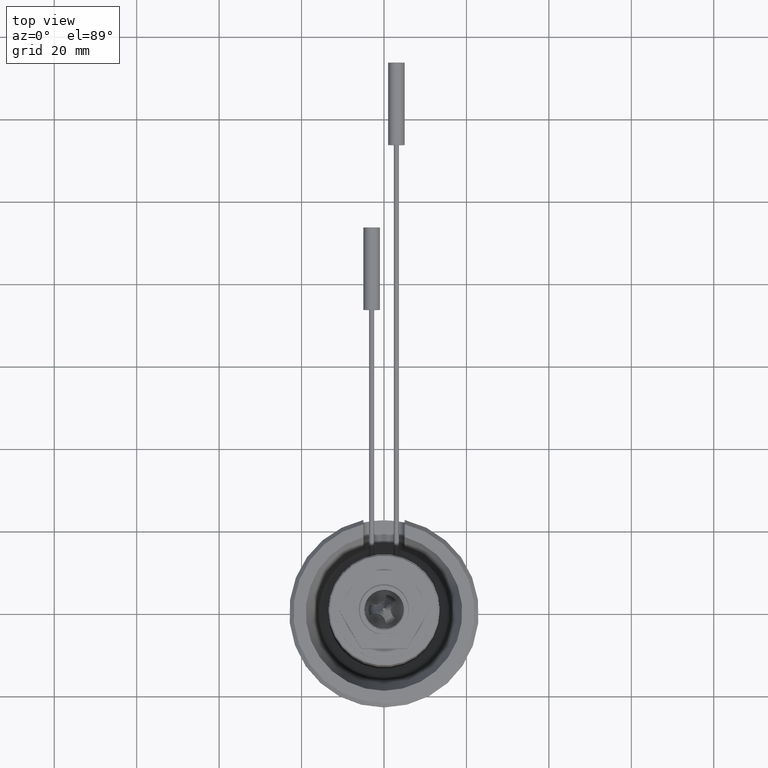
[diagram: clean part render]
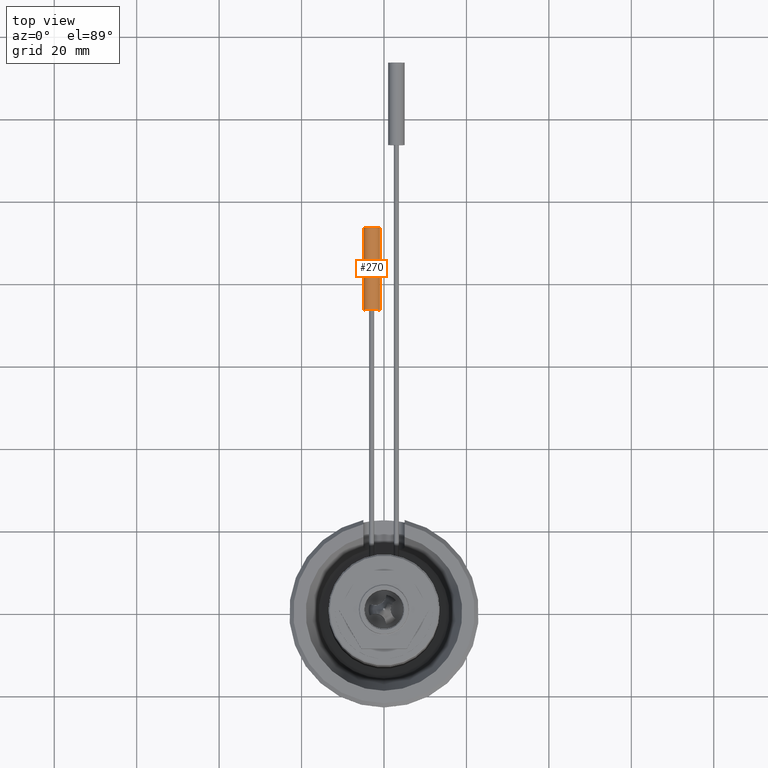
[diagram: same view with one face highlighted and labeled with its STEP entity id]
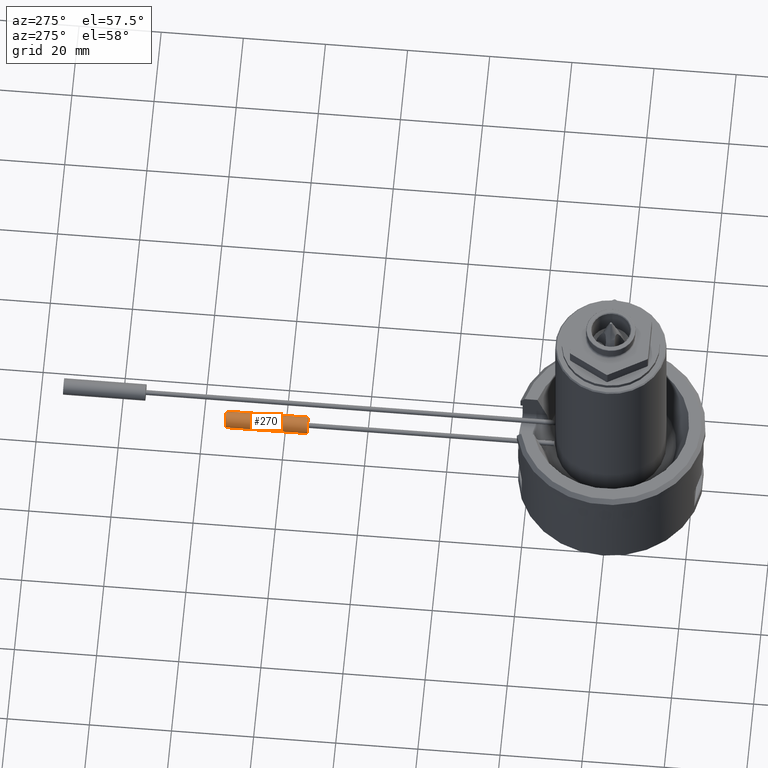
[diagram: same view with one face highlighted and labeled with its STEP entity id]
A machine part, top view. The second image highlights one B-rep face of the part: STEP entity #270.
A second angle (auxiliary view) of the same face is appended — the face is thin or edge-on in the first view.
In plain terms, the highlighted cylindrical surface (bore or boss wall) has radius 2 mm, axis along (0, -1, 0).
Its self-contained STEP definition (entity closure, byte-faithful):
#270=ADVANCED_FACE('',(#367,#368),#343,.T.);
#343=CYLINDRICAL_SURFACE('',#1116,2.);
#367=FACE_BOUND('',#431,.T.);
#368=FACE_BOUND('',#432,.T.);
#431=EDGE_LOOP('',(#538));
#432=EDGE_LOOP('',(#539));
#538=ORIENTED_EDGE('',*,*,#896,.F.);
#539=ORIENTED_EDGE('',*,*,#897,.T.);
#798=VERTEX_POINT('',#1588);
#799=VERTEX_POINT('',#1590);
#896=EDGE_CURVE('',#798,#798,#1027,.T.);
#897=EDGE_CURVE('',#799,#799,#1028,.T.);
#1027=CIRCLE('',#1114,2.);
#1028=CIRCLE('',#1115,2.);
#1114=AXIS2_PLACEMENT_3D('',#1587,#1262,#1263);
#1115=AXIS2_PLACEMENT_3D('',#1589,#1264,#1265);
#1116=AXIS2_PLACEMENT_3D('',#1591,#1266,#1267);
#1262=DIRECTION('',(0.,1.,0.));
#1263=DIRECTION('',(1.,0.,0.));
#1264=DIRECTION('',(0.,1.,0.));
#1265=DIRECTION('',(1.,0.,0.));
#1266=DIRECTION('',(0.,-1.,0.));
#1267=DIRECTION('',(0.,0.,-1.));
#1587=CARTESIAN_POINT('',(-3.,93.5,18.5));
#1588=CARTESIAN_POINT('',(-0.999999999999999,93.5,18.5));
#1589=CARTESIAN_POINT('',(-3.,73.5,18.5));
#1590=CARTESIAN_POINT('',(-0.999999999999999,73.5,18.5));
#1591=CARTESIAN_POINT('',(-3.,93.5,18.5));